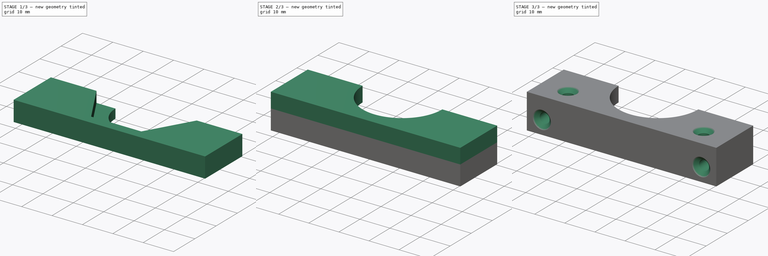
[diagram: build sequence overview — one tinted view per stage of 3, left to right]
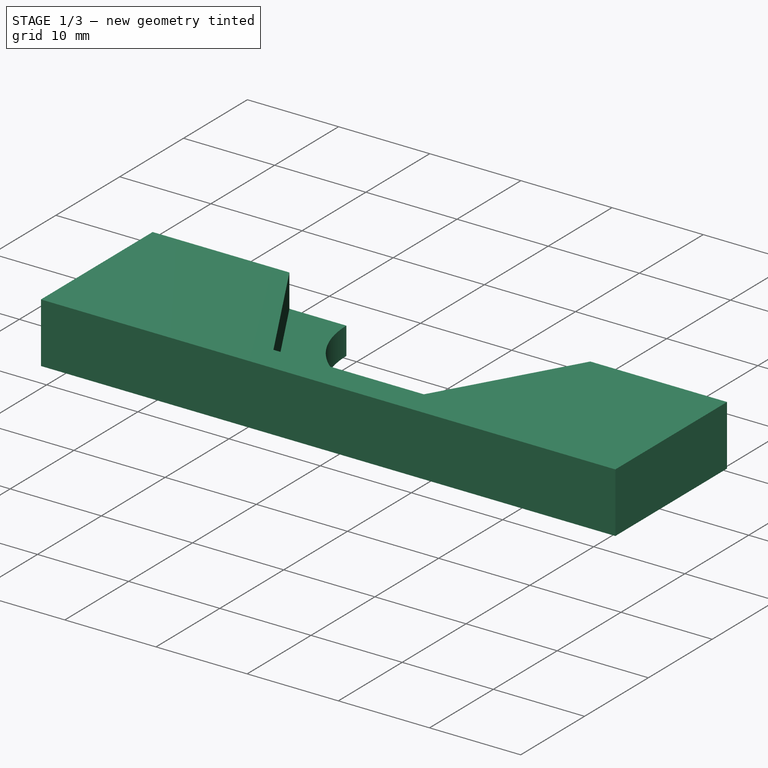
[diagram: stage 1 of 3 — iso view after this stage's code; geometry added in this stage tinted green]
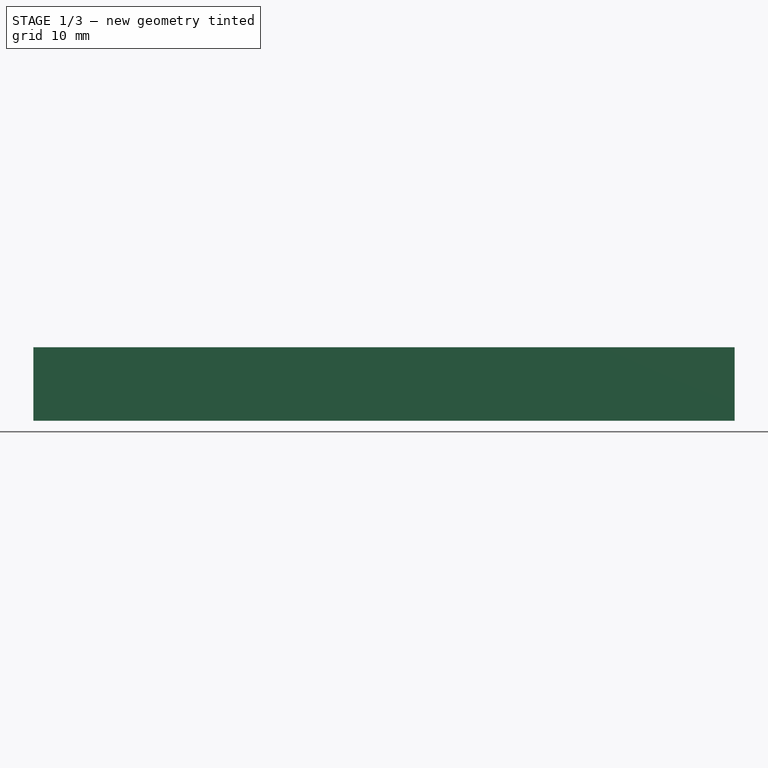
[diagram: stage 1 of 3 — front view after this stage's code; geometry added in this stage tinted green]
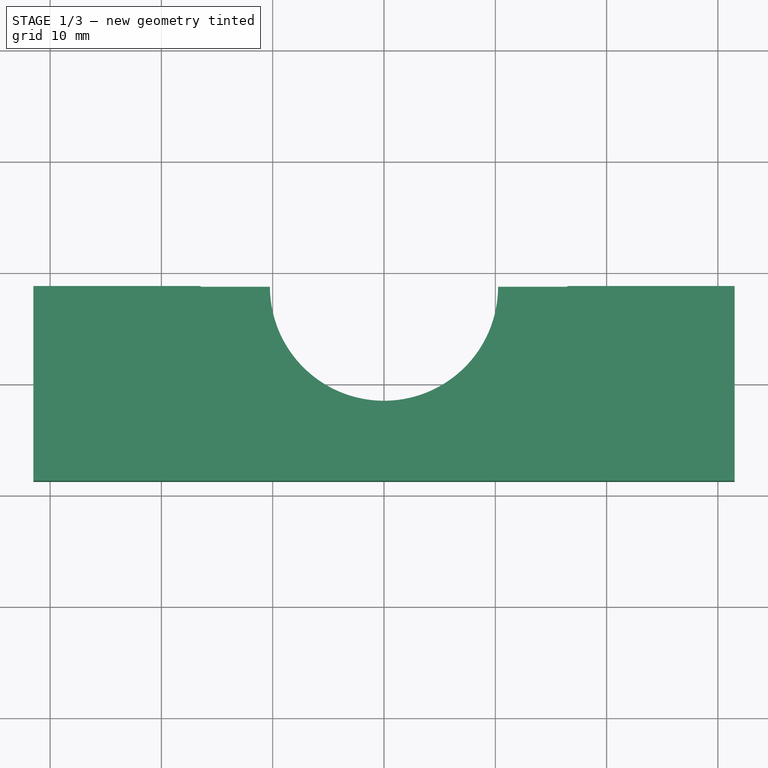
[diagram: stage 1 of 3 — top view after this stage's code; geometry added in this stage tinted green]
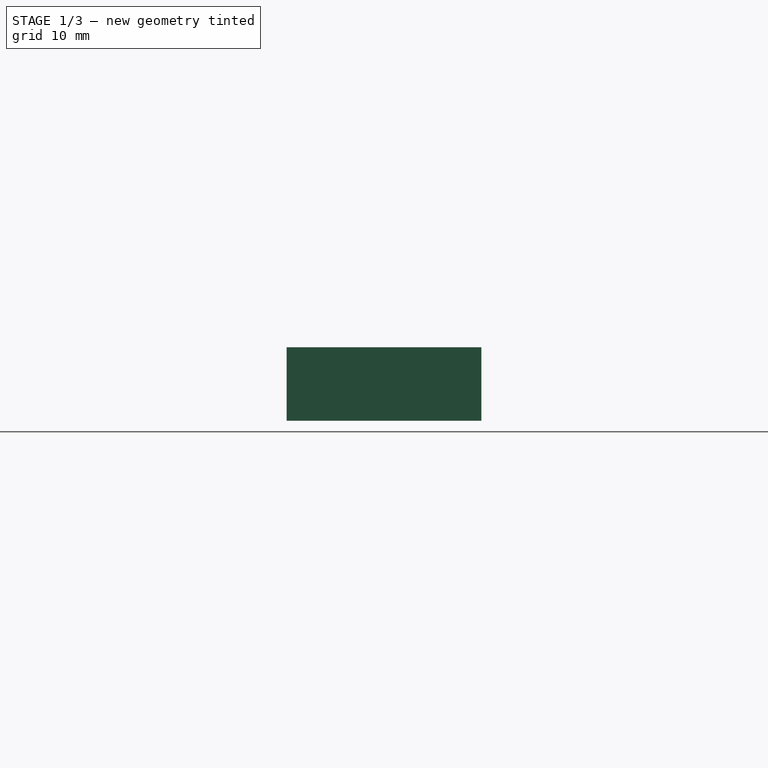
[diagram: stage 1 of 3 — right view after this stage's code; geometry added in this stage tinted green]
FCSTD DOCUMENT  (FreeCAD 0.17R12955 (Git))
Label: THC-01-Clamp
License: All rights reserved
LicenseURL: http://en.wikipedia.org/wiki/All_rights_reserved
objects: Sketcher::SketchObject×5, PartDesign::Pad×3, PartDesign::Hole×2, PartDesign::Body×1
note: 16 computed .brp shape members not serialized (recipe doc carries the construction recipe); baked Part::Feature solids carry a one-line shape summary decoded from their .brp

FEATURE [Sketcher::SketchObject] Sketch
  MapMode = 5
  Support = -> [XY_Plane]
  sketch-geometry (6):
    g0: LineSegment StartX=-31.5 StartY=8.75 StartZ=0 EndX=-10.25 EndY=8.75 EndZ=0
    g1: LineSegment StartX=31.5 StartY=8.75 StartZ=0 EndX=31.5 EndY=-8.75 EndZ=0
    g2: LineSegment StartX=31.5 StartY=-8.75 StartZ=0 EndX=-31.5 EndY=-8.75 EndZ=0
    g3: LineSegment StartX=-31.5 StartY=-8.75 StartZ=0 EndX=-31.5 EndY=8.75 EndZ=0
    g4: ArcOfCircle CenterX=0 CenterY=8.75 CenterZ=0 NormalX=0 NormalY=0 NormalZ=1 AngleXU=0 Radius=10.25 StartAngle=3.14159 EndAngle=6.28319
    g5: LineSegment StartX=10.25 StartY=8.75 StartZ=0 EndX=31.5 EndY=8.75 EndZ=0
  constraints (18):
    c: Coincident(g5,g1)
    c: Coincident(g1,g2)
    c: Coincident(g2,g3)
    c: Coincident(g3,g0)
    c: Horizontal(g0)
    c: Horizontal(g2)
    c: Vertical(g1)
    c: Vertical(g3)
    c: DistanceY(g2,g0) = 17.5
    c: DistanceX(g0,g5) = 63
    c: Symmetric(g0,g5,g-2)
    c: Symmetric(g0,g2,g-1)
    c: Radius(g4) = 10.25
    c: Tangent(g0,g5)
    c: Coincident(g4,g0)
    c: Coincident(g4,g5)
    c: PointOnObject(g4,g-2)
    c: DistanceY(g4,g0) = 0
FEATURE [PartDesign::Pad] Pad
  Length = 3
  Length2 = 100
  Profile = -> Sketch
  Type = 0
FEATURE [Sketcher::SketchObject] Sketch001
  ExternalGeometry = -> [Pad]
  MapMode = 5
  Placement = pos=(0,0,3) rot=(0,0,1;0rad)
  Support = -> [Pad]
  sketch-geometry (9):
    g0: LineSegment StartX=8.25 StartY=-5.53942 StartZ=0 EndX=16.5 EndY=8.75 EndZ=0
    g1: LineSegment StartX=-16.5 StartY=8.75 StartZ=0 EndX=-8.25 EndY=-5.53942 EndZ=0
    g2: LineSegment StartX=-8.25 StartY=-5.53942 StartZ=0 EndX=8.25 EndY=-5.53942 EndZ=0
    g3: Circle [constr] CenterX=0 CenterY=8.75 CenterZ=0 NormalX=0 NormalY=0 NormalZ=1 AngleXU=0 Radius=16.5
    g4: LineSegment StartX=-16.5 StartY=8.75 StartZ=0 EndX=-31.5 EndY=8.75 EndZ=0
    g5: LineSegment StartX=-31.5 StartY=8.75 StartZ=0 EndX=-31.5 EndY=-8.75 EndZ=0
    g6: LineSegment StartX=-31.5 StartY=-8.75 StartZ=0 EndX=31.5 EndY=-8.75 EndZ=0
    g7: LineSegment StartX=31.5 StartY=-8.75 StartZ=0 EndX=31.5 EndY=8.75 EndZ=0
    g8: LineSegment StartX=31.5 StartY=8.75 StartZ=0 EndX=16.5 EndY=8.75 EndZ=0
  constraints (24):
    c: Coincident(g1,g2)
    c: Coincident(g2,g0)
    c: Equal(g0,g1)
    c: Equal(g0,g2)
    c: PointOnObject(g0,g3)
    c: PointOnObject(g1,g3)
    c: PointOnObject(g1,g3)
    c: PointOnObject(g2,g3)
    c: PointOnObject(g3,g-2)
    c: Parallel(g2,g-1)
    c: Coincident(g4,g-3)
    c: Horizontal(g4)
    c: Coincident(g4,g5)
    c: Coincident(g5,g-3)
    c: Coincident(g5,g6)
    c: Coincident(g6,g-4)
    c: Coincident(g6,g7)
    c: Coincident(g7,g-4)
    c: Coincident(g7,g8)
    c: Coincident(g8,g0)
    c: Horizontal(g8)
    c: DistanceY(g3,g1) = 0
    c: Coincident(g4,g1)
    c: DistanceX(g1,g0) = 16.5
FEATURE [PartDesign::Pad] Pad001
  BaseFeature = -> Pad
  Length = 3.6
  Length2 = 100
  Profile = -> Sketch001
  Type = 0
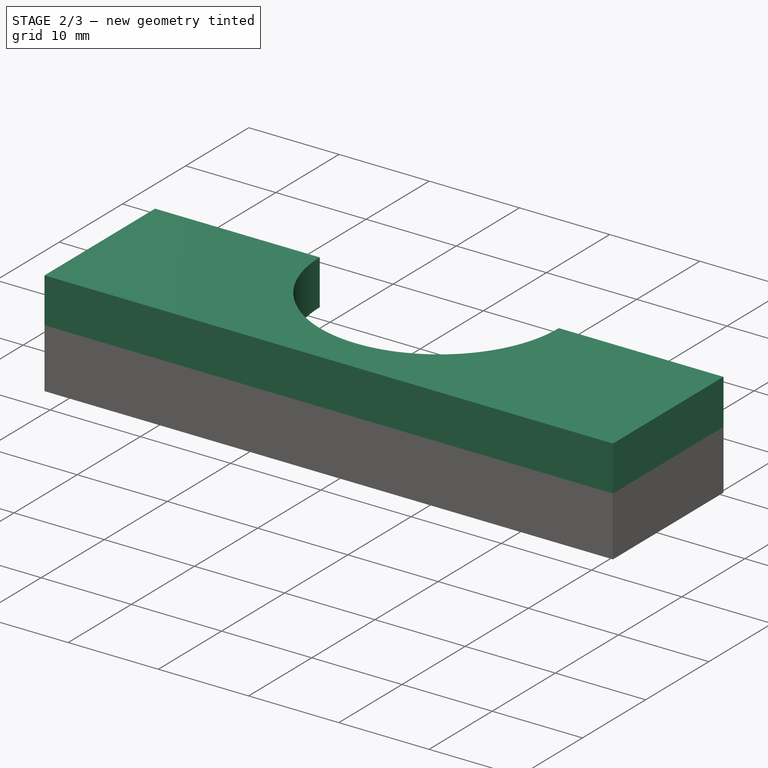
[diagram: stage 2 of 3 — iso view after this stage's code; geometry added in this stage tinted green]
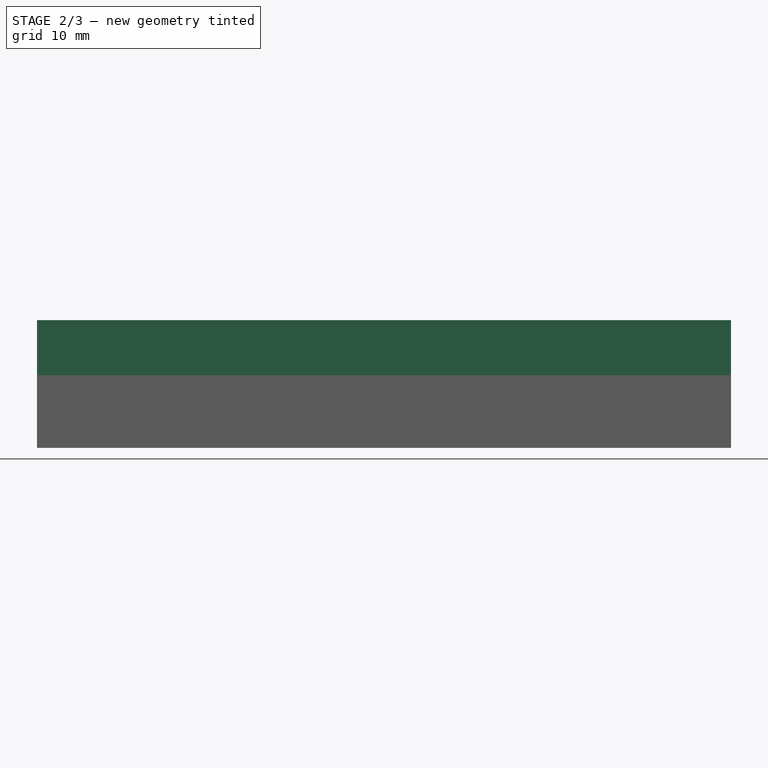
[diagram: stage 2 of 3 — front view after this stage's code; geometry added in this stage tinted green]
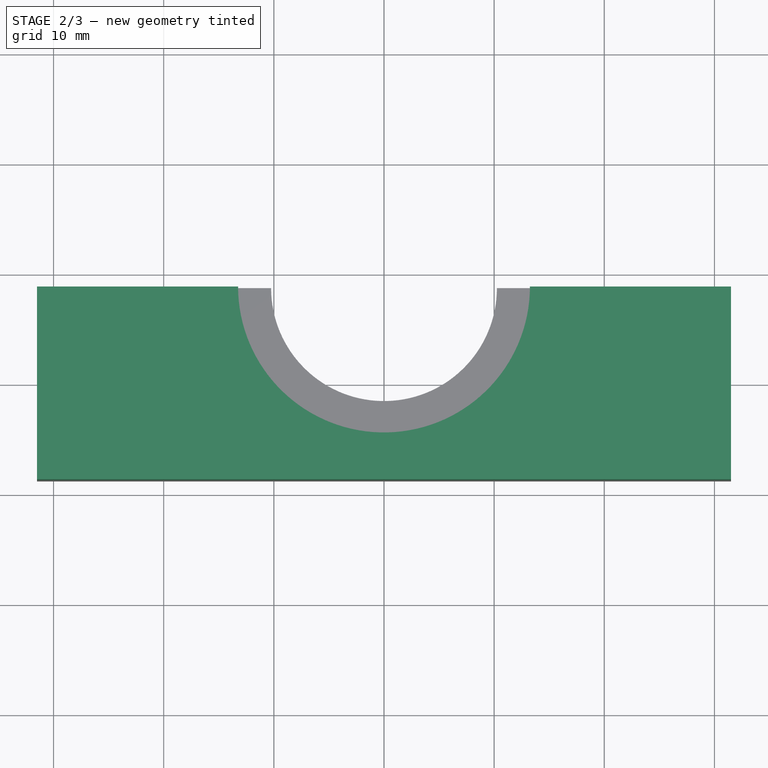
[diagram: stage 2 of 3 — top view after this stage's code; geometry added in this stage tinted green]
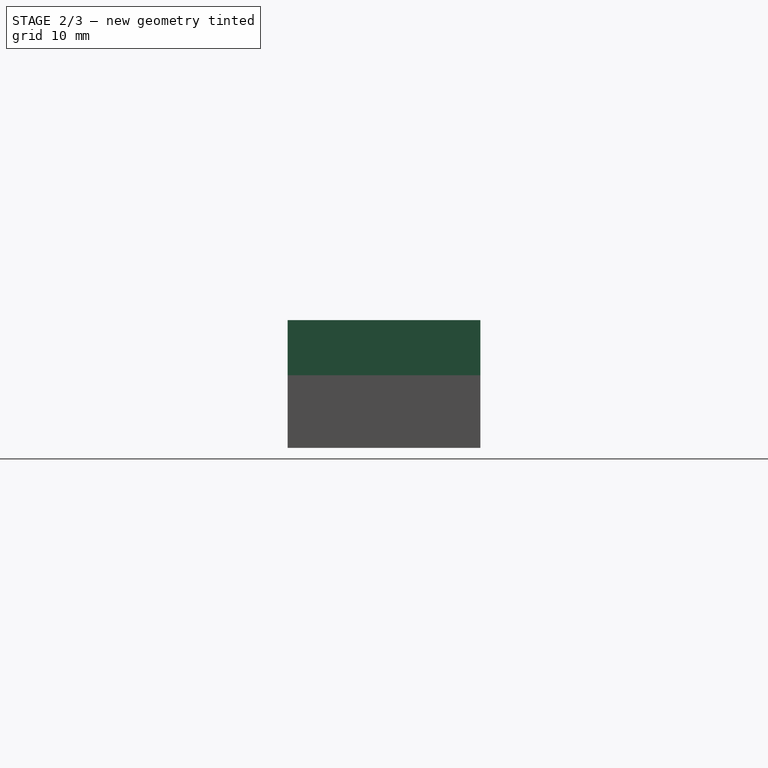
[diagram: stage 2 of 3 — right view after this stage's code; geometry added in this stage tinted green]
FEATURE [Sketcher::SketchObject] Sketch002
  ExternalGeometry = -> [Pad001]
  MapMode = 5
  Placement = pos=(0,0,6.6) rot=(0,0,1;0rad)
  Support = -> [Pad001]
  sketch-geometry (6):
    g0: LineSegment StartX=-31.5 StartY=8.75 StartZ=0 EndX=-13.25 EndY=8.75 EndZ=0
    g1: LineSegment StartX=31.5 StartY=8.75 StartZ=0 EndX=31.5 EndY=-8.75 EndZ=0
    g2: LineSegment StartX=31.5 StartY=-8.75 StartZ=0 EndX=-31.5 EndY=-8.75 EndZ=0
    g3: LineSegment StartX=-31.5 StartY=-8.75 StartZ=0 EndX=-31.5 EndY=8.75 EndZ=0
    g4: ArcOfCircle CenterX=0 CenterY=8.75 CenterZ=0 NormalX=0 NormalY=0 NormalZ=1 AngleXU=0 Radius=13.25 StartAngle=3.14159 EndAngle=6.28319
    g5: LineSegment StartX=13.25 StartY=8.75 StartZ=0 EndX=31.5 EndY=8.75 EndZ=0
  constraints (16):
    c: Coincident(g5,g1)
    c: Coincident(g1,g2)
    c: Coincident(g2,g3)
    c: Coincident(g3,g0)
    c: Horizontal(g0)
    c: Horizontal(g2)
    c: Vertical(g1)
    c: Vertical(g3)
    c: Coincident(g0,g-3)
    c: Coincident(g1,g-4)
    c: Radius(g4) = 13.25
    c: PointOnObject(g4,g-2)
    c: DistanceY(g4,g-3) = 0
    c: Tangent(g0,g5)
    c: Coincident(g4,g0)
    c: Coincident(g4,g5)
FEATURE [PartDesign::Pad] Pad002
  BaseFeature = -> Pad001
  Length = 5
  Length2 = 100
  Profile = -> Sketch002
  Type = 0
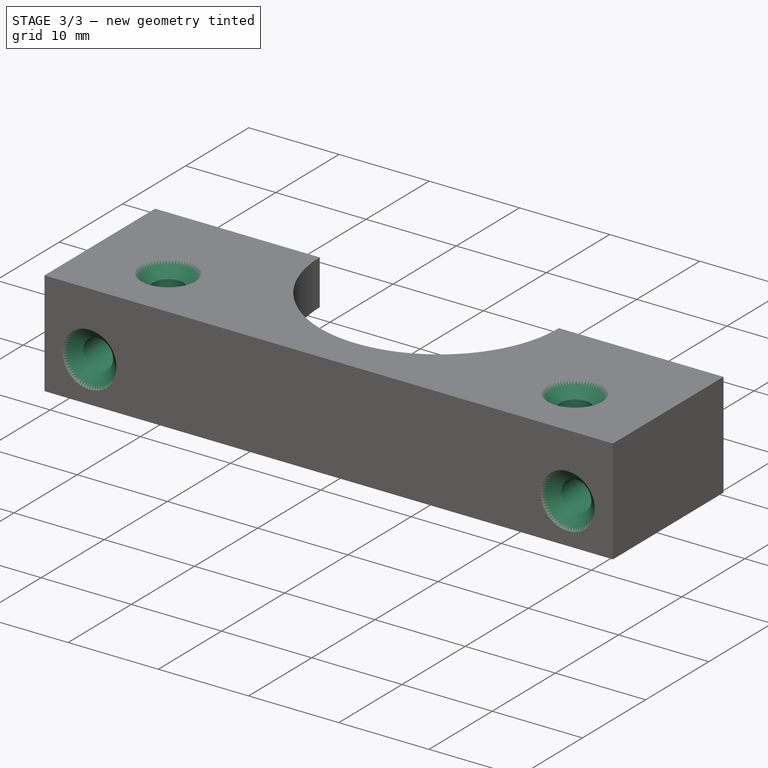
[diagram: stage 3 of 3 — iso view after this stage's code; geometry added in this stage tinted green]
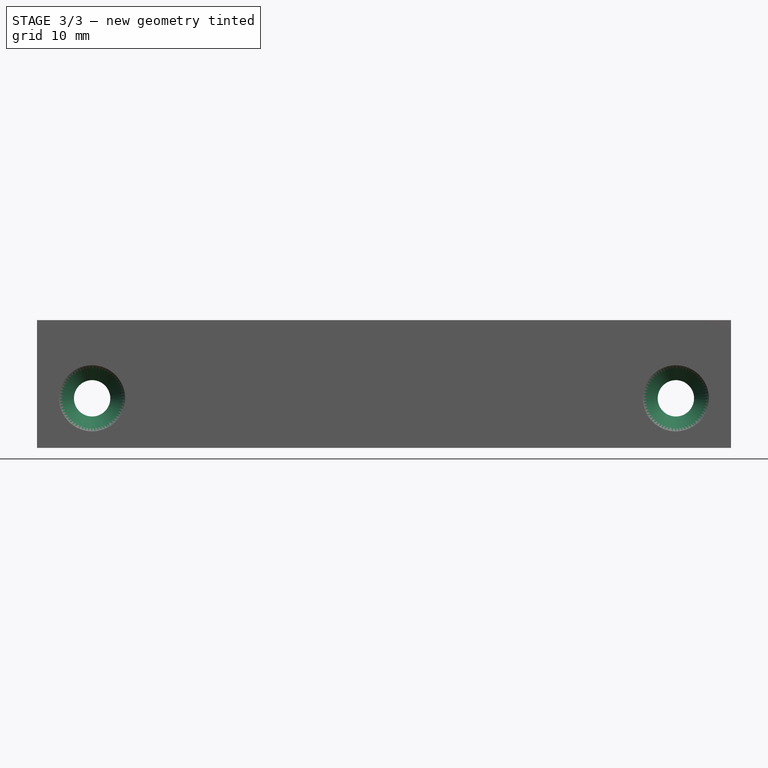
[diagram: stage 3 of 3 — front view after this stage's code; geometry added in this stage tinted green]
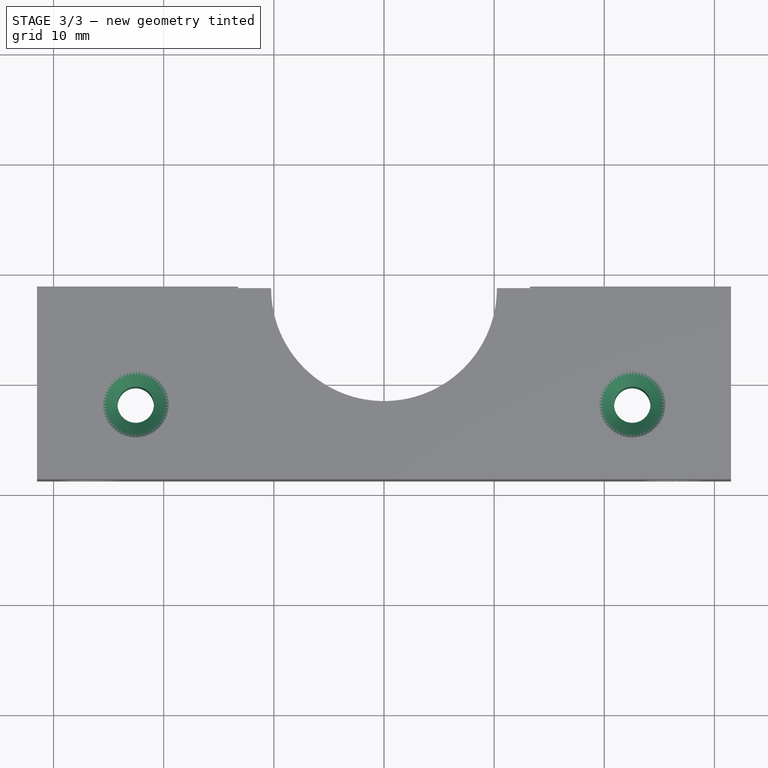
[diagram: stage 3 of 3 — top view after this stage's code; geometry added in this stage tinted green]
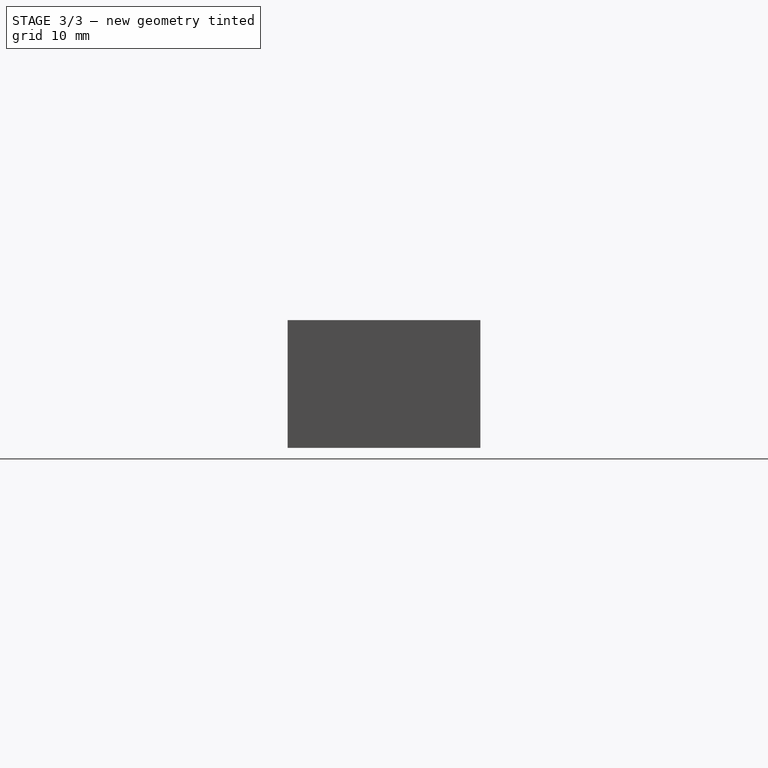
[diagram: stage 3 of 3 — right view after this stage's code; geometry added in this stage tinted green]
FEATURE [Sketcher::SketchObject] Sketch003
  ExternalGeometry = -> [Pad002]
  MapMode = 5
  Placement = pos=(0,0,11.6) rot=(0,0,1;0rad)
  Support = -> [Pad002]
  sketch-geometry (2):
    g0: Circle CenterX=-22.54 CenterY=-1.95 CenterZ=0 NormalX=0 NormalY=0 NormalZ=1 AngleXU=0 Radius=1.75
    g1: Circle CenterX=22.54 CenterY=-1.95 CenterZ=0 NormalX=0 NormalY=0 NormalZ=1 AngleXU=0 Radius=1.75
  constraints (6):
    c: Radius(g0) = 1.75
    c: Equal(g0,g1)
    c: DistanceX(g-4,g0) = 8.96
    c: DistanceX(g1,g-5) = 8.96
    c: DistanceY(g-3,g0) = 6.8
    c: DistanceY(g-3,g1) = 6.8
FEATURE [PartDesign::Hole] Hole001
  Depth = 25
  DepthType = 0
  Diameter = 3.3
  DrillPoint = 1
  DrillPointAngle = 118
  HoleCutCountersinkAngle = 90
  HoleCutDepth = 0
  HoleCutDiameter = 6
  HoleCutType = 2
  ModelActualThread = false
  Profile = -> Sketch003
  Tapered = false
  TaperedAngle = 90
  ThreadAngle = 0
  ThreadClass = 0
  ThreadCutOffInner = 0
  ThreadCutOffOuter = 0
  ThreadDirection = 0
  ThreadFit = 0
  ThreadPitch = 0
  ThreadSize = 3
  ThreadType = 1
  Threaded = false
FEATURE [Sketcher::SketchObject] Sketch004
  ExternalGeometry = -> [Hole001]
  MapMode = 5
  Placement = pos=(0,-8.75,0) rot=(1,0,0;1.5708rad)
  Support = -> [Hole001]
  sketch-geometry (2):
    g0: Circle CenterX=26.5 CenterY=4.5 CenterZ=0 NormalX=0 NormalY=0 NormalZ=1 AngleXU=0 Radius=1.75
    g1: Circle CenterX=-26.5 CenterY=4.5 CenterZ=0 NormalX=0 NormalY=0 NormalZ=1 AngleXU=0 Radius=1.75
  constraints (6):
    c: Radius(g1) = 1.75
    c: Equal(g1,g0)
    c: DistanceX(g1,g-1) = 26.5
    c: DistanceX(g-1,g0) = 26.5
    c: DistanceY(g-3,g1) = 4.5
    c: DistanceY(g-3,g0) = 4.5
FEATURE [PartDesign::Hole] Hole
  BaseFeature = -> Hole001
  Depth = 25
  DepthType = 0
  Diameter = 3.3
  DrillPoint = 1
  DrillPointAngle = 118
  HoleCutCountersinkAngle = 90
  HoleCutDepth = 0
  HoleCutDiameter = 6
  HoleCutType = 2
  ModelActualThread = false
  Profile = -> Sketch004
  Tapered = false
  TaperedAngle = 90
  ThreadAngle = 0
  ThreadClass = 0
  ThreadCutOffInner = 0
  ThreadCutOffOuter = 0
  ThreadDirection = 0
  ThreadFit = 0
  ThreadPitch = 0
  ThreadSize = 3
  ThreadType = 1
  Threaded = false
FEATURE [PartDesign::Body] Body
  Group = -> [Sketch,Pad,Sketch001,Pad001,Sketch002,Pad002,Sketch003,Sketch004,Hole001,Hole]
  Origin = -> Origin
  Tip = -> Hole
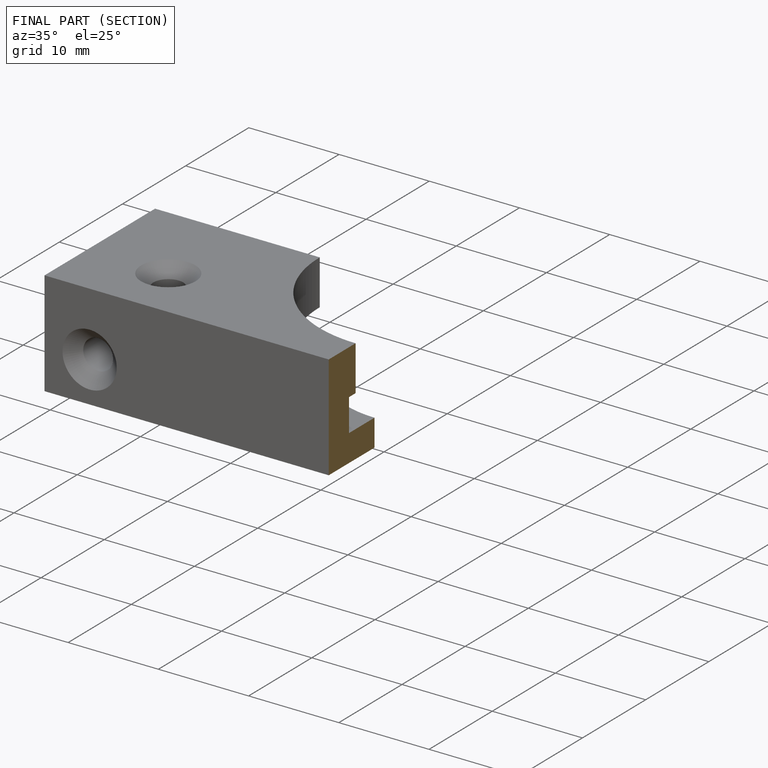
[diagram: finished part — half-section view (interior)]
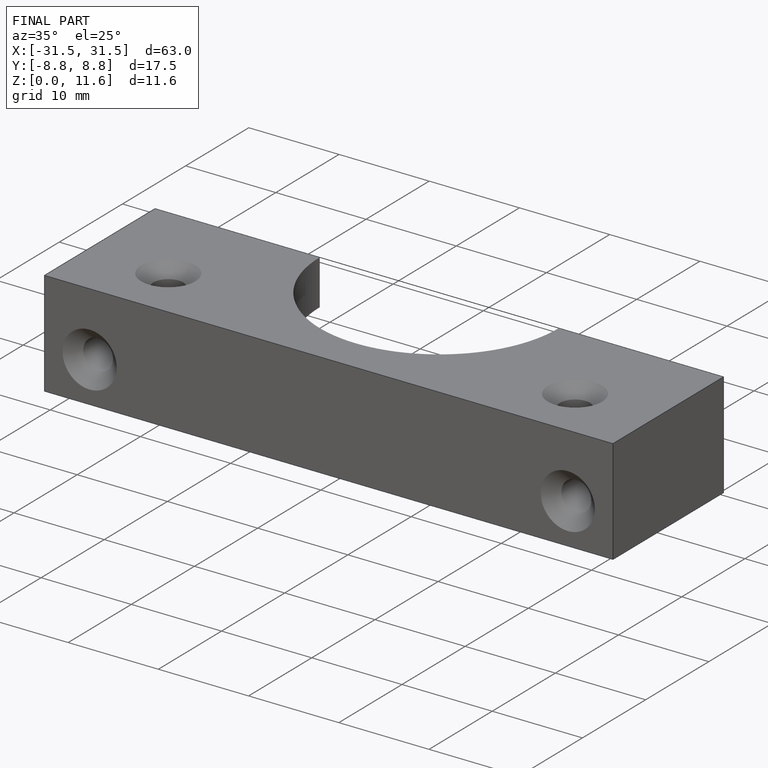
[diagram: finished part — iso view with bounding-box wireframe]
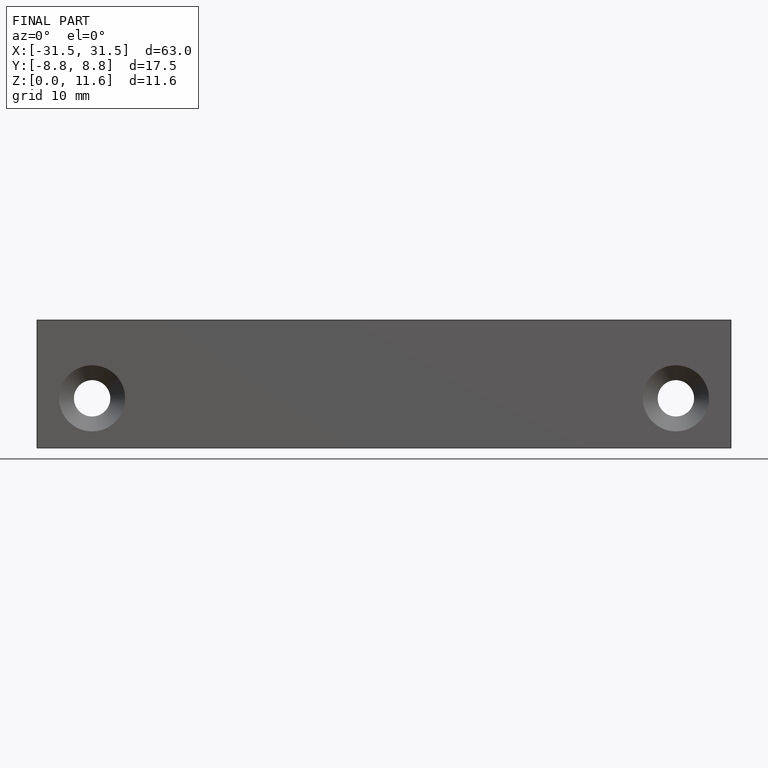
[diagram: finished part — front view with bounding-box wireframe]
